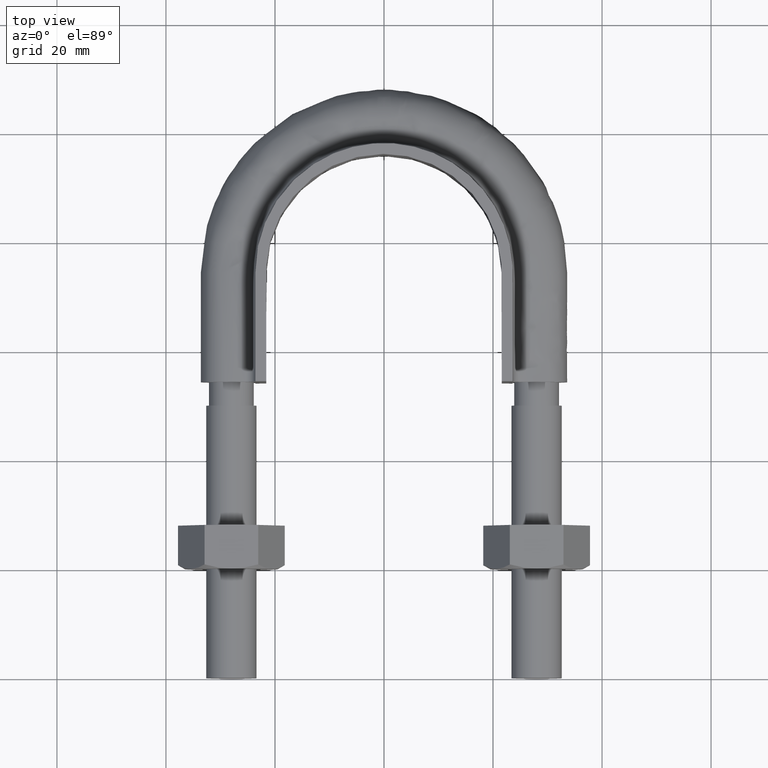
[diagram: clean part render]
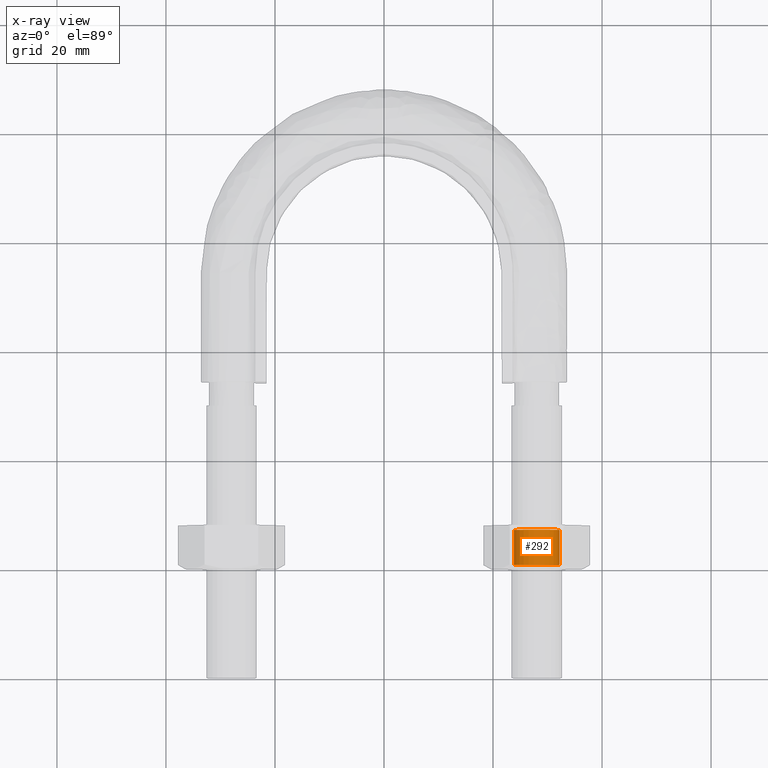
[diagram: x-ray — body ghosted, one internal face saturated and labeled with its STEP entity id]
A machine part, top view, then the same camera in x-ray: the body is ghosted and one INTERNAL B-rep face — a face not visible from any outside direction — is saturated and labeled: STEP entity #292.
In plain terms, the highlighted cylindrical surface (bore or boss wall) has radius 4.188 mm, axis along (0, 1, 0).
Its self-contained STEP definition (entity closure, byte-faithful):
#292 = ADVANCED_FACE( '', ( #461, #462 ), #463, .F. );
#461 = FACE_OUTER_BOUND( '', #1458, .T. );
#462 = FACE_OUTER_BOUND( '', #1459, .T. );
#463 = CYLINDRICAL_SURFACE( '', #1460, 4.18800000000000 );
#1458 = EDGE_LOOP( '', ( #1984 ) );
#1459 = EDGE_LOOP( '', ( #1985 ) );
#1460 = AXIS2_PLACEMENT_3D( '', #1986, #1987, #1988 );
#1984 = ORIENTED_EDGE( '', *, *, #2154, .F. );
#1985 = ORIENTED_EDGE( '', *, *, #2118, .T. );
#1986 = CARTESIAN_POINT( '', ( 28.0000000000000, 28.0000000000000, 1.11228300875288E-015 ) );
#1987 = DIRECTION( '', ( 2.44921270764475E-016, 1.00000000000000, 6.12303176911189E-017 ) );
#1988 = DIRECTION( '', ( -0.866025403784439, 1.81492883563643E-016, 0.500000000000000 ) );
#2118 = EDGE_CURVE( '', #2347, #2347, #2348, .T. );
#2154 = EDGE_CURVE( '', #2403, #2403, #2404, .F. );
#2347 = VERTEX_POINT( '', #2947 );
#2348 = CIRCLE( '', #2948, 4.18800000000000 );
#2403 = VERTEX_POINT( '', #3052 );
#2404 = CIRCLE( '', #3053, 4.18800000000000 );
#2947 = CARTESIAN_POINT( '', ( 23.8120000000000, 27.1880000000000, 1.06256399078769E-015 ) );
#2948 = AXIS2_PLACEMENT_3D( '', #3226, #3227, #3228 );
#3052 = CARTESIAN_POINT( '', ( 32.1880000000000, 20.8120000000000, 6.72159485189117E-016 ) );
#3053 = AXIS2_PLACEMENT_3D( '', #3285, #3286, #3287 );
#3226 = CARTESIAN_POINT( '', ( 28.0000000000000, 27.1880000000000, 1.06256399078769E-015 ) );
#3227 = DIRECTION( '', ( 2.44921270764475E-016, 1.00000000000000, 6.12303176911189E-017 ) );
#3228 = DIRECTION( '', ( -1.00000000000000, 2.44921270764475E-016, 0.000000000000000 ) );
#3285 = CARTESIAN_POINT( '', ( 28.0000000000000, 20.8120000000000, 6.72159485189117E-016 ) );
#3286 = DIRECTION( '', ( -2.44921270764475E-016, -1.00000000000000, -6.12303176911189E-017 ) );
#3287 = DIRECTION( '', ( 1.00000000000000, -2.44921270764475E-016, 0.000000000000000 ) );